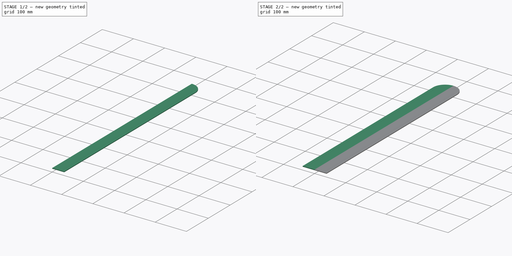
[diagram: build sequence overview — one tinted view per stage of 2, left to right]
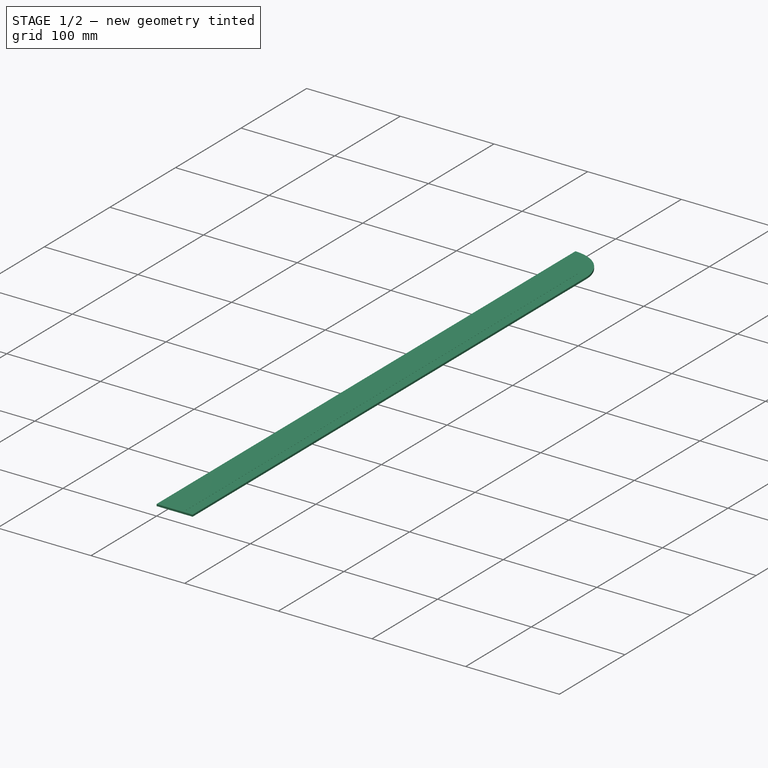
[diagram: stage 1 of 2 — iso view after this stage's code; geometry added in this stage tinted green]
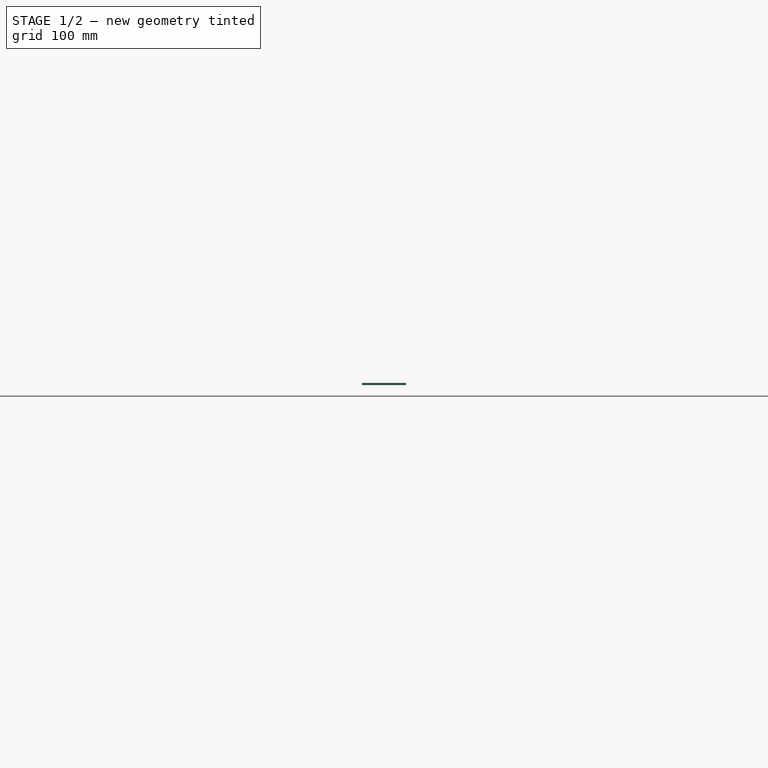
[diagram: stage 1 of 2 — front view after this stage's code; geometry added in this stage tinted green]
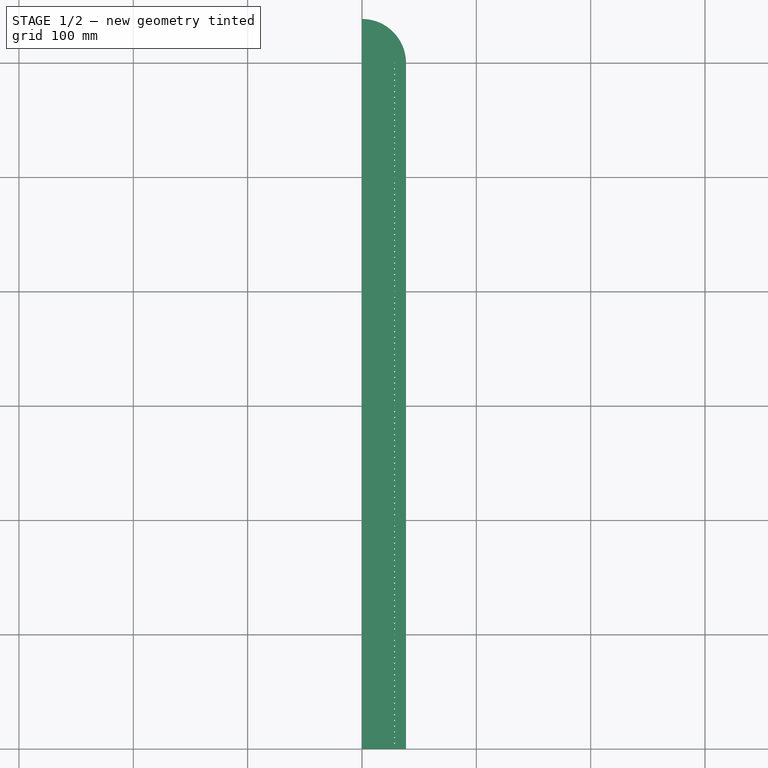
[diagram: stage 1 of 2 — top view after this stage's code; geometry added in this stage tinted green]
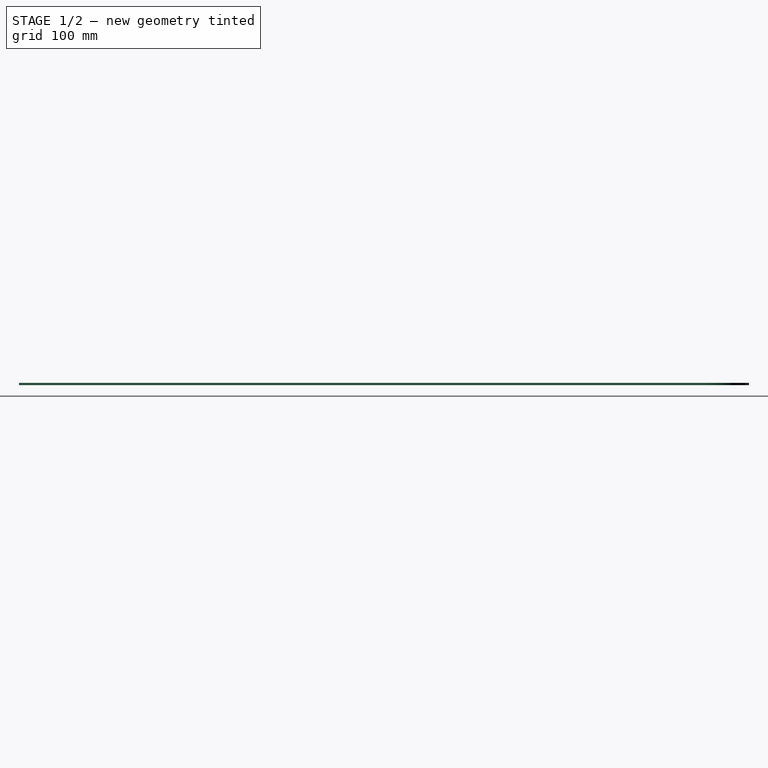
[diagram: stage 1 of 2 — right view after this stage's code; geometry added in this stage tinted green]
FCSTD DOCUMENT  (FreeCAD 0.18R16146 (Git))
Label: Pourtour
License: All rights reserved
LicenseURL: http://en.wikipedia.org/wiki/All_rights_reserved
objects: Sketcher::SketchObject×1, PartDesign::Pad×1, PartDesign::Mirrored×1, PartDesign::Body×1, Drawing::FeatureViewPart×1, Drawing::FeaturePage×1
note: 5 computed .brp shape members not serialized (recipe doc carries the construction recipe); baked Part::Feature solids carry a one-line shape summary decoded from their .brp

FEATURE [Sketcher::SketchObject] Sketch
  MapMode = 5
  Support = -> [XY_Plane]
  sketch-geometry (126):
    g0: LineSegment StartX=0 StartY=0 StartZ=0 EndX=38.5 EndY=0 EndZ=0
    g1: LineSegment StartX=38.5 StartY=0 StartZ=0 EndX=38.5 EndY=600 EndZ=0
    g2: LineSegment [constr] StartX=38.5 StartY=600 StartZ=0 EndX=0 EndY=600 EndZ=0
    g3: ArcOfCircle CenterX=0 CenterY=600 CenterZ=0 NormalX=0 NormalY=0 NormalZ=1 AngleXU=0 Radius=38.5 StartAngle=0 EndAngle=1.5708
    g4: LineSegment [constr] StartX=28.5 StartY=600 StartZ=0 EndX=28.5 EndY=0 EndZ=0
    g5: Circle CenterX=28.5 CenterY=5 CenterZ=0 NormalX=0 NormalY=0 NormalZ=1 AngleXU=0 Radius=0.5
    g6: Circle CenterX=28.5 CenterY=10 CenterZ=0 NormalX=0 NormalY=0 NormalZ=1 AngleXU=0 Radius=0.5
    g7: Circle CenterX=28.5 CenterY=15 CenterZ=0 NormalX=0 NormalY=0 NormalZ=1 AngleXU=0 Radius=0.5
    g8: Circle CenterX=28.5 CenterY=20 CenterZ=0 NormalX=0 NormalY=0 NormalZ=1 AngleXU=0 Radius=0.5
    g9: Circle CenterX=28.5 CenterY=25 CenterZ=0 NormalX=0 NormalY=0 NormalZ=1 AngleXU=0 Radius=0.5
    g10: Circle CenterX=28.5 CenterY=30 CenterZ=0 NormalX=0 NormalY=0 NormalZ=1 AngleXU=0 Radius=0.5
    g11: Circle CenterX=28.5 CenterY=35 CenterZ=0 NormalX=0 NormalY=0 NormalZ=1 AngleXU=0 Radius=0.5
    g12: Circle CenterX=28.5 CenterY=40 CenterZ=0 NormalX=0 NormalY=0 NormalZ=1 AngleXU=0 Radius=0.5
    g13: Circle CenterX=28.5 CenterY=45 CenterZ=0 NormalX=0 NormalY=0 NormalZ=1 AngleXU=0 Radius=0.5
    g14: Circle CenterX=28.5 CenterY=50 CenterZ=0 NormalX=0 NormalY=0 NormalZ=1 AngleXU=0 Radius=0.5
    g15: Circle CenterX=28.5 CenterY=55 CenterZ=0 NormalX=0 NormalY=0 NormalZ=1 AngleXU=0 Radius=0.5
    g16: Circle CenterX=28.5 CenterY=60 CenterZ=0 NormalX=0 NormalY=0 NormalZ=1 AngleXU=0 Radius=0.5
    g17: Circle CenterX=28.5 CenterY=65 CenterZ=0 NormalX=0 NormalY=0 NormalZ=1 AngleXU=0 Radius=0.5
    g18: Circle CenterX=28.5 CenterY=70 CenterZ=0 NormalX=0 NormalY=0 NormalZ=1 AngleXU=0 Radius=0.5
    g19: Circle CenterX=28.5 CenterY=75 CenterZ=0 NormalX=0 NormalY=0 NormalZ=1 AngleXU=0 Radius=0.5
    g20: Circle CenterX=28.5 CenterY=80 CenterZ=0 NormalX=0 NormalY=0 NormalZ=1 AngleXU=0 Radius=0.5
    g21: Circle CenterX=28.5 CenterY=85 CenterZ=0 NormalX=0 NormalY=0 NormalZ=1 AngleXU=0 Radius=0.5
    g22: Circle CenterX=28.5 CenterY=90 CenterZ=0 NormalX=0 NormalY=0 NormalZ=1 AngleXU=0 Radius=0.5
    g23: Circle CenterX=28.5 CenterY=95 CenterZ=0 NormalX=0 NormalY=0 NormalZ=1 AngleXU=0 Radius=0.5
    g24: Circle CenterX=28.5 CenterY=100 CenterZ=0 NormalX=0 NormalY=0 NormalZ=1 AngleXU=0 Radius=0.5
    g25: Circle CenterX=28.5 CenterY=105 CenterZ=0 NormalX=0 NormalY=0 NormalZ=1 AngleXU=0 Radius=0.5
    g26: Circle CenterX=28.5 CenterY=110 CenterZ=0 NormalX=0 NormalY=0 NormalZ=1 AngleXU=0 Radius=0.5
    g27: Circle CenterX=28.5 CenterY=115 CenterZ=0 NormalX=0 NormalY=0 NormalZ=1 AngleXU=0 Radius=0.5
    g28: Circle CenterX=28.5 CenterY=120 CenterZ=0 NormalX=0 NormalY=0 NormalZ=1 AngleXU=0 Radius=0.5
    g29: Circle CenterX=28.5 CenterY=125 CenterZ=0 NormalX=0 NormalY=0 NormalZ=1 AngleXU=0 Radius=0.5
    g30: Circle CenterX=28.5 CenterY=130 CenterZ=0 NormalX=0 NormalY=0 NormalZ=1 AngleXU=0 Radius=0.5
    g31: Circle CenterX=28.5 CenterY=135 CenterZ=0 NormalX=0 NormalY=0 NormalZ=1 AngleXU=0 Radius=0.5
    g32: Circle CenterX=28.5 CenterY=140 CenterZ=0 NormalX=0 NormalY=0 NormalZ=1 AngleXU=0 Radius=0.5
    g33: Circle CenterX=28.5 CenterY=145 CenterZ=0 NormalX=0 NormalY=0 NormalZ=1 AngleXU=0 Radius=0.5
    g34: Circle CenterX=28.5 CenterY=150 CenterZ=0 NormalX=0 NormalY=0 NormalZ=1 AngleXU=0 Radius=0.5
    g35: Circle CenterX=28.5 CenterY=155 CenterZ=0 NormalX=0 NormalY=0 NormalZ=1 AngleXU=0 Radius=0.5
    g36: Circle CenterX=28.5 CenterY=160 CenterZ=0 NormalX=0 NormalY=0 NormalZ=1 AngleXU=0 Radius=0.5
    g37: Circle CenterX=28.5 CenterY=165 CenterZ=0 NormalX=0 NormalY=0 NormalZ=1 AngleXU=0 Radius=0.5
    g38: Circle CenterX=28.5 CenterY=170 CenterZ=0 NormalX=0 NormalY=0 NormalZ=1 AngleXU=0 Radius=0.5
    g39: Circle CenterX=28.5 CenterY=175 CenterZ=0 NormalX=0 NormalY=0 NormalZ=1 AngleXU=0 Radius=0.5
    g40: Circle CenterX=28.5 CenterY=180 CenterZ=0 NormalX=0 NormalY=0 NormalZ=1 AngleXU=0 Radius=0.5
    g41: Circle CenterX=28.5 CenterY=185 CenterZ=0 NormalX=0 NormalY=0 NormalZ=1 AngleXU=0 Radius=0.5
    g42: Circle CenterX=28.5 CenterY=190 CenterZ=0 NormalX=0 NormalY=0 NormalZ=1 AngleXU=0 Radius=0.5
    g43: Circle CenterX=28.5 CenterY=195 CenterZ=0 NormalX=0 NormalY=0 NormalZ=1 AngleXU=0 Radius=0.5
    g44: Circle CenterX=28.5 CenterY=200 CenterZ=0 NormalX=0 NormalY=0 NormalZ=1 AngleXU=0 Radius=0.5
    g45: Circle CenterX=28.5 CenterY=205 CenterZ=0 NormalX=0 NormalY=0 NormalZ=1 AngleXU=0 Radius=0.5
    g46: Circle CenterX=28.5 CenterY=210 CenterZ=0 NormalX=0 NormalY=0 NormalZ=1 AngleXU=0 Radius=0.5
    g47: Circle CenterX=28.5 CenterY=215 CenterZ=0 NormalX=0 NormalY=0 NormalZ=1 AngleXU=0 Radius=0.5
    g48: Circle CenterX=28.5 CenterY=220 CenterZ=0 NormalX=0 NormalY=0 NormalZ=1 AngleXU=0 Radius=0.5
    g49: Circle CenterX=28.5 CenterY=225 CenterZ=0 NormalX=0 NormalY=0 NormalZ=1 AngleXU=0 Radius=0.5
    g50: Circle CenterX=28.5 CenterY=230 CenterZ=0 NormalX=0 NormalY=0 NormalZ=1 AngleXU=0 Radius=0.5
    g51: Circle CenterX=28.5 CenterY=235 CenterZ=0 NormalX=0 NormalY=0 NormalZ=1 AngleXU=0 Radius=0.5
    g52: Circle CenterX=28.5 CenterY=240 CenterZ=0 NormalX=0 NormalY=0 NormalZ=1 AngleXU=0 Radius=0.5
    g53: Circle CenterX=28.5 CenterY=245 CenterZ=0 NormalX=0 NormalY=0 NormalZ=1 AngleXU=0 Radius=0.5
    g54: Circle CenterX=28.5 CenterY=250 CenterZ=0 NormalX=0 NormalY=0 NormalZ=1 AngleXU=0 Radius=0.5
    g55: Circle CenterX=28.5 CenterY=255 CenterZ=0 NormalX=0 NormalY=0 NormalZ=1 AngleXU=0 Radius=0.5
    g56: Circle CenterX=28.5 CenterY=260 CenterZ=0 NormalX=0 NormalY=0 NormalZ=1 AngleXU=0 Radius=0.5
    g57: Circle CenterX=28.5 CenterY=265 CenterZ=0 NormalX=0 NormalY=0 NormalZ=1 AngleXU=0 Radius=0.5
    g58: Circle CenterX=28.5 CenterY=270 CenterZ=0 NormalX=0 NormalY=0 NormalZ=1 AngleXU=0 Radius=0.5
    g59: Circle CenterX=28.5 CenterY=275 CenterZ=0 NormalX=0 NormalY=0 NormalZ=1 AngleXU=0 Radius=0.5
    g60: Circle CenterX=28.5 CenterY=280 CenterZ=0 NormalX=0 NormalY=0 NormalZ=1 AngleXU=0 Radius=0.5
    g61: Circle CenterX=28.5 CenterY=285 CenterZ=0 NormalX=0 NormalY=0 NormalZ=1 AngleXU=0 Radius=0.5
    g62: Circle CenterX=28.5 CenterY=290 CenterZ=0 NormalX=0 NormalY=0 NormalZ=1 AngleXU=0 Radius=0.5
    g63: Circle CenterX=28.5 CenterY=295 CenterZ=0 NormalX=0 NormalY=0 NormalZ=1 AngleXU=0 Radius=0.5
    g64: Circle CenterX=28.5 CenterY=300 CenterZ=0 NormalX=0 NormalY=0 NormalZ=1 AngleXU=0 Radius=0.5
    g65: Circle CenterX=28.5 CenterY=305 CenterZ=0 NormalX=0 NormalY=0 NormalZ=1 AngleXU=0 Radius=0.5
    g66: Circle CenterX=28.5 CenterY=310 CenterZ=0 NormalX=0 NormalY=0 NormalZ=1 AngleXU=0 Radius=0.5
    g67: Circle CenterX=28.5 CenterY=315 CenterZ=0 NormalX=0 NormalY=0 NormalZ=1 AngleXU=0 Radius=0.5
    g68: Circle CenterX=28.5 CenterY=320 CenterZ=0 NormalX=0 NormalY=0 NormalZ=1 AngleXU=0 Radius=0.5
    g69: Circle CenterX=28.5 CenterY=325 CenterZ=0 NormalX=0 NormalY=0 NormalZ=1 AngleXU=0 Radius=0.5
    g70: Circle CenterX=28.5 CenterY=330 CenterZ=0 NormalX=0 NormalY=0 NormalZ=1 AngleXU=0 Radius=0.5
    g71: Circle CenterX=28.5 CenterY=335 CenterZ=0 NormalX=0 NormalY=0 NormalZ=1 AngleXU=0 Radius=0.5
    g72: Circle CenterX=28.5 CenterY=340 CenterZ=0 NormalX=0 NormalY=0 NormalZ=1 AngleXU=0 Radius=0.5
    g73: Circle CenterX=28.5 CenterY=345 CenterZ=0 NormalX=0 NormalY=0 NormalZ=1 AngleXU=0 Radius=0.5
    g74: Circle CenterX=28.5 CenterY=350 CenterZ=0 NormalX=0 NormalY=0 NormalZ=1 AngleXU=0 Radius=0.5
    g75: Circle CenterX=28.5 CenterY=355 CenterZ=0 NormalX=0 NormalY=0 NormalZ=1 AngleXU=0 Radius=0.5
    g76: Circle CenterX=28.5 CenterY=360 CenterZ=0 NormalX=0 NormalY=0 NormalZ=1 AngleXU=0 Radius=0.5
    g77: Circle CenterX=28.5 CenterY=365 CenterZ=0 NormalX=0 NormalY=0 NormalZ=1 AngleXU=0 Radius=0.5
    g78: Circle CenterX=28.5 CenterY=370 CenterZ=0 NormalX=0 NormalY=0 NormalZ=1 AngleXU=0 Radius=0.5
    g79: Circle CenterX=28.5 CenterY=375 CenterZ=0 NormalX=0 NormalY=0 NormalZ=1 AngleXU=0 Radius=0.5
    g80: Circle CenterX=28.5 CenterY=380 CenterZ=0 NormalX=0 NormalY=0 NormalZ=1 AngleXU=0 Radius=0.5
    g81: Circle CenterX=28.5 CenterY=385 CenterZ=0 NormalX=0 NormalY=0 NormalZ=1 AngleXU=0 Radius=0.5
    g82: Circle CenterX=28.5 CenterY=390 CenterZ=0 NormalX=0 NormalY=0 NormalZ=1 AngleXU=0 Radius=0.5
    g83: Circle CenterX=28.5 CenterY=395 CenterZ=0 NormalX=0 NormalY=0 NormalZ=1 AngleXU=0 Radius=0.5
    g84: Circle CenterX=28.5 CenterY=400 CenterZ=0 NormalX=0 NormalY=0 NormalZ=1 AngleXU=0 Radius=0.5
    g85: Circle CenterX=28.5 CenterY=405 CenterZ=0 NormalX=0 NormalY=0 NormalZ=1 AngleXU=0 Radius=0.5
    g86: Circle CenterX=28.5 CenterY=410 CenterZ=0 NormalX=0 NormalY=0 NormalZ=1 AngleXU=0 Radius=0.5
    g87: Circle CenterX=28.5 CenterY=415 CenterZ=0 NormalX=0 NormalY=0 NormalZ=1 AngleXU=0 Radius=0.5
    g88: Circle CenterX=28.5 CenterY=420 CenterZ=0 NormalX=0 NormalY=0 NormalZ=1 AngleXU=0 Radius=0.5
    g89: Circle CenterX=28.5 CenterY=425 CenterZ=0 NormalX=0 NormalY=0 NormalZ=1 AngleXU=0 Radius=0.5
    g90: Circle CenterX=28.5 CenterY=430 CenterZ=0 NormalX=0 NormalY=0 NormalZ=1 AngleXU=0 Radius=0.5
    g91: Circle CenterX=28.5 CenterY=435 CenterZ=0 NormalX=0 NormalY=0 NormalZ=1 AngleXU=0 Radius=0.5
    g92: Circle CenterX=28.5 CenterY=440 CenterZ=0 NormalX=0 NormalY=0 NormalZ=1 AngleXU=0 Radius=0.5
    g93: Circle CenterX=28.5 CenterY=445 CenterZ=0 NormalX=0 NormalY=0 NormalZ=1 AngleXU=0 Radius=0.5
    g94: Circle CenterX=28.5 CenterY=450 CenterZ=0 NormalX=0 NormalY=0 NormalZ=1 AngleXU=0 Radius=0.5
    g95: Circle CenterX=28.5 CenterY=455 CenterZ=0 NormalX=0 NormalY=0 NormalZ=1 AngleXU=0 Radius=0.5
    g96: Circle CenterX=28.5 CenterY=460 CenterZ=0 NormalX=0 NormalY=0 NormalZ=1 AngleXU=0 Radius=0.5
    g97: Circle CenterX=28.5 CenterY=465 CenterZ=0 NormalX=0 NormalY=0 NormalZ=1 AngleXU=0 Radius=0.5
    g98: Circle CenterX=28.5 CenterY=470 CenterZ=0 NormalX=0 NormalY=0 NormalZ=1 AngleXU=0 Radius=0.5
    g99: Circle CenterX=28.5 CenterY=475 CenterZ=0 NormalX=0 NormalY=0 NormalZ=1 AngleXU=0 Radius=0.5
    g100: Circle CenterX=28.5 CenterY=480 CenterZ=0 NormalX=0 NormalY=0 NormalZ=1 AngleXU=0 Radius=0.5
    g101: Circle CenterX=28.5 CenterY=485 CenterZ=0 NormalX=0 NormalY=0 NormalZ=1 AngleXU=0 Radius=0.5
    g102: Circle CenterX=28.5 CenterY=490 CenterZ=0 NormalX=0 NormalY=0 NormalZ=1 AngleXU=0 Radius=0.5
    g103: Circle CenterX=28.5 CenterY=495 CenterZ=0 NormalX=0 NormalY=0 NormalZ=1 AngleXU=0 Radius=0.5
    g104: Circle CenterX=28.5 CenterY=500 CenterZ=0 NormalX=0 NormalY=0 NormalZ=1 AngleXU=0 Radius=0.5
    g105: Circle CenterX=28.5 CenterY=505 CenterZ=0 NormalX=0 NormalY=0 NormalZ=1 AngleXU=0 Radius=0.5
    g106: Circle CenterX=28.5 CenterY=510 CenterZ=0 NormalX=0 NormalY=0 NormalZ=1 AngleXU=0 Radius=0.5
    g107: Circle CenterX=28.5 CenterY=515 CenterZ=0 NormalX=0 NormalY=0 NormalZ=1 AngleXU=0 Radius=0.5
    g108: Circle CenterX=28.5 CenterY=520 CenterZ=0 NormalX=0 NormalY=0 NormalZ=1 AngleXU=0 Radius=0.5
    g109: Circle CenterX=28.5 CenterY=525 CenterZ=0 NormalX=0 NormalY=0 NormalZ=1 AngleXU=0 Radius=0.5
    g110: Circle CenterX=28.5 CenterY=530 CenterZ=0 NormalX=0 NormalY=0 NormalZ=1 AngleXU=0 Radius=0.5
    g111: Circle CenterX=28.5 CenterY=535 CenterZ=0 NormalX=0 NormalY=0 NormalZ=1 AngleXU=0 Radius=0.5
    g112: Circle CenterX=28.5 CenterY=540 CenterZ=0 NormalX=0 NormalY=0 NormalZ=1 AngleXU=0 Radius=0.5
    g113: Circle CenterX=28.5 CenterY=545 CenterZ=0 NormalX=0 NormalY=0 NormalZ=1 AngleXU=0 Radius=0.5
    g114: Circle CenterX=28.5 CenterY=550 CenterZ=0 NormalX=0 NormalY=0 NormalZ=1 AngleXU=0 Radius=0.5
    g115: Circle CenterX=28.5 CenterY=555 CenterZ=0 NormalX=0 NormalY=0 NormalZ=1 AngleXU=0 Radius=0.5
    g116: Circle CenterX=28.5 CenterY=560 CenterZ=0 NormalX=0 NormalY=0 NormalZ=1 AngleXU=0 Radius=0.5
    g117: Circle CenterX=28.5 CenterY=565 CenterZ=0 NormalX=0 NormalY=0 NormalZ=1 AngleXU=0 Radius=0.5
    g118: Circle CenterX=28.5 CenterY=570 CenterZ=0 NormalX=0 NormalY=0 NormalZ=1 AngleXU=0 Radius=0.5
    g119: Circle CenterX=28.5 CenterY=575 CenterZ=0 NormalX=0 NormalY=0 NormalZ=1 AngleXU=0 Radius=0.5
    g120: Circle CenterX=28.5 CenterY=580 CenterZ=0 NormalX=0 NormalY=0 NormalZ=1 AngleXU=0 Radius=0.5
    g121: Circle CenterX=28.5 CenterY=585 CenterZ=0 NormalX=0 NormalY=0 NormalZ=1 AngleXU=0 Radius=0.5
    g122: Circle CenterX=28.5 CenterY=590 CenterZ=0 NormalX=0 NormalY=0 NormalZ=1 AngleXU=0 Radius=0.5
    g123: Circle CenterX=28.5 CenterY=595 CenterZ=0 NormalX=0 NormalY=0 NormalZ=1 AngleXU=0 Radius=0.5
    g124: Circle CenterX=28.5 CenterY=600 CenterZ=0 NormalX=0 NormalY=0 NormalZ=1 AngleXU=0 Radius=0.5
    g125: LineSegment StartX=2.4e-15 StartY=638.5 StartZ=0 EndX=0 EndY=0 EndZ=0
  constraints (378):
    c: Horizontal(g0)
    c: Coincident(g0,g-1)
    c: DistanceX(g0,g0) = 38.5
    c: Vertical(g1)
    c: Coincident(g1,g0)
    c: DistanceY(g1,g1) = 600
    c: Coincident(g2,g1)
    c: PointOnObject(g2,g-2)
    c: Horizontal(g2)
    c: Coincident(g3,g2)
    c: Coincident(g3,g1)
    c: PointOnObject(g3,g-2)
    c: Vertical(g4)
    c: PointOnObject(g4,g2)
    c: Distance(g4,g1) = 10
    c: PointOnObject(g4,g0)
    c: PointOnObject(g5,g4)
    c: Radius(g5) = 0.5
    c: Distance(g5,g0) = 5
    c: PointOnObject(g6,g4)
    c: Radius(g6) = 0.5
    c: Distance(g6,g5) = 5
    c: Equal(g5,g7) = 0.5
    c: Equal(g6,g8) = 0.5
    c: Distance(g8,g7) = 5
    c: PointOnObject(g8,g4)
    c: PointOnObject(g7,g4)
    c: Distance(g6,g7) = 5
    c: Equal(g5,g9) = 0.5
    c: Equal(g6,g10) = 0.5
    c: Distance(g10,g9) = 5
    c: Equal(g9,g11) = 0.5
    c: Equal(g10,g12) = 0.5
    c: Distance(g12,g11) = 5
    c: Distance(g10,g11) = 5
    c: PointOnObject(g12,g4)
    c: PointOnObject(g11,g4)
    c: PointOnObject(g10,g4)
    c: PointOnObject(g9,g4)
    c: Distance(g9,g8) = 5
    c: Equal(g5,g13) = 0.5
    c: Equal(g6,g14) = 0.5
    c: Distance(g14,g13) = 5
    c: Equal(g13,g15) = 0.5
    c: Equal(g14,g16) = 0.5
    c: Distance(g16,g15) = 5
    c: Distance(g14,g15) = 5
    c: Equal(g13,g17) = 0.5
    c: Equal(g14,g18) = 0.5
    c: Distance(g18,g17) = 5
    c: Equal(g17,g19) = 0.5
    c: Equal(g18,g20) = 0.5
    c: Distance(g20,g19) = 5
    c: Distance(g18,g19) = 5
    c: Distance(g17,g16) = 5
    c: PointOnObject(g20,g4)
    c: PointOnObject(g13,g4)
    c: PointOnObject(g14,g4)
    c: PointOnObject(g15,g4)
    c: PointOnObject(g16,g4)
    c: PointOnObject(g17,g4)
    c: PointOnObject(g18,g4)
    c: PointOnObject(g19,g4)
    c: Distance(g13,g12) = 5
    c: Equal(g5,g21) = 0.5
    c: Equal(g6,g22) = 0.5
    c: Distance(g22,g21) = 5
    c: Equal(g21,g23) = 0.5
    c: Equal(g22,g24) = 0.5
    c: Distance(g24,g23) = 5
    c: Distance(g22,g23) = 5
    c: Equal(g21,g25) = 0.5
    c: Equal(g22,g26) = 0.5
    c: Distance(g26,g25) = 5
    c: Equal(g25,g27) = 0.5
    c: Equal(g26,g28) = 0.5
    c: Distance(g28,g27) = 5
    c: Distance(g26,g27) = 5
    c: Distance(g25,g24) = 5
    c: Equal(g21,g29) = 0.5
    c: Equal(g22,g30) = 0.5
    c: Distance(g30,g29) = 5
    c: Equal(g29,g31) = 0.5
    c: Equal(g30,g32) = 0.5
    c: Distance(g32,g31) = 5
    c: Distance(g30,g31) = 5
    c: Equal(g29,g33) = 0.5
    c: Equal(g30,g34) = 0.5
    c: Distance(g34,g33) = 5
    c: Equal(g33,g35) = 0.5
    c: Equal(g34,g36) = 0.5
    c: Distance(g36,g35) = 5
    c: Distance(g34,g35) = 5
    c: Distance(g33,g32) = 5
    c: Distance(g29,g28) = 5
    c: PointOnObject(g36,g4)
    c: PointOnObject(g21,g4)
    c: PointOnObject(g22,g4)
    c: PointOnObject(g23,g4)
    c: PointOnObject(g24,g4)
    c: PointOnObject(g25,g4)
    c: PointOnObject(g26,g4)
    c: PointOnObject(g27,g4)
    c: PointOnObject(g28,g4)
    c: PointOnObject(g29,g4)
    c: PointOnObject(g30,g4)
    c: PointOnObject(g31,g4)
    c: PointOnObject(g32,g4)
    c: PointOnObject(g33,g4)
    c: PointOnObject(g34,g4)
    c: PointOnObject(g35,g4)
    c: Distance(g21,g20) = 5
    c: Equal(g5,g37) = 0.5
    c: Equal(g6,g38) = 0.5
    c: Distance(g38,g37) = 5
    c: Equal(g37,g39) = 0.5
    c: Equal(g38,g40) = 0.5
    c: Distance(g40,g39) = 5
    c: Distance(g38,g39) = 5
    c: Equal(g37,g41) = 0.5
    c: Equal(g38,g42) = 0.5
    c: Distance(g42,g41) = 5
    c: Equal(g41,g43) = 0.5
    c: Equal(g42,g44) = 0.5
    c: Distance(g44,g43) = 5
    c: Distance(g42,g43) = 5
    c: Distance(g41,g40) = 5
    c: Equal(g37,g45) = 0.5
    c: Equal(g38,g46) = 0.5
    c: Distance(g46,g45) = 5
    c: Equal(g45,g47) = 0.5
    c: Equal(g46,g48) = 0.5
    c: Distance(g48,g47) = 5
    c: Distance(g46,g47) = 5
    c: Equal(g45,g49) = 0.5
    c: Equal(g46,g50) = 0.5
    c: Distance(g50,g49) = 5
    c: Equal(g49,g51) = 0.5
    c: Equal(g50,g52) = 0.5
    c: Distance(g52,g51) = 5
    c: Distance(g50,g51) = 5
    c: Distance(g49,g48) = 5
    c: Distance(g45,g44) = 5
    c: Equal(g37,g53) = 0.5
    c: Equal(g38,g54) = 0.5
    c: Distance(g54,g53) = 5
    c: Equal(g53,g55) = 0.5
    c: Equal(g54,g56) = 0.5
    c: Distance(g56,g55) = 5
    c: Distance(g54,g55) = 5
    c: Equal(g53,g57) = 0.5
    c: Equal(g54,g58) = 0.5
    c: Distance(g58,g57) = 5
    c: Equal(g57,g59) = 0.5
    c: Equal(g58,g60) = 0.5
    c: Distance(g60,g59) = 5
    c: Distance(g58,g59) = 5
    c: Distance(g57,g56) = 5
    c: Equal(g53,g61) = 0.5
    c: Equal(g54,g62) = 0.5
    c: Distance(g62,g61) = 5
    c: Equal(g61,g63) = 0.5
    c: Equal(g62,g64) = 0.5
    c: Distance(g64,g63) = 5
    c: Distance(g62,g63) = 5
    c: Equal(g61,g65) = 0.5
    c: Equal(g62,g66) = 0.5
    c: Distance(g66,g65) = 5
    c: Equal(g65,g67) = 0.5
    c: Equal(g66,g68) = 0.5
    c: Distance(g68,g67) = 5
    c: Distance(g66,g67) = 5
    c: Distance(g65,g64) = 5
    c: Distance(g61,g60) = 5
    c: Distance(g53,g52) = 5
    c: PointOnObject(g68,g4)
    c: PointOnObject(g37,g4)
    c: PointOnObject(g38,g4)
    c: PointOnObject(g67,g4)
    c: PointOnObject(g66,g4)
    c: PointOnObject(g65,g4)
    c: PointOnObject(g64,g4)
    c: PointOnObject(g63,g4)
    c: PointOnObject(g62,g4)
    c: PointOnObject(g61,g4)
    c: PointOnObject(g60,g4)
    c: PointOnObject(g59,g4)
    c: PointOnObject(g58,g4)
    c: PointOnObject(g57,g4)
    c: PointOnObject(g56,g4)
    c: PointOnObject(g55,g4)
    c: PointOnObject(g54,g4)
    c: PointOnObject(g53,g4)
    c: PointOnObject(g52,g4)
    c: PointOnObject(g51,g4)
    c: PointOnObject(g50,g4)
    c: PointOnObject(g49,g4)
    c: PointOnObject(g48,g4)
    c: PointOnObject(g47,g4)
    c: PointOnObject(g46,g4)
    c: PointOnObject(g45,g4)
    c: PointOnObject(g44,g4)
    c: PointOnObject(g43,g4)
    c: PointOnObject(g42,g4)
    c: PointOnObject(g41,g4)
    c: PointOnObject(g40,g4)
    c: PointOnObject(g39,g4)
    c: Distance(g37,g36) = 5
    c: Equal(g5,g69) = 0.5
    c: Equal(g6,g70) = 0.5
    c: Distance(g70,g69) = 5
    c: Equal(g69,g71) = 0.5
    c: Equal(g70,g72) = 0.5
    c: Distance(g72,g71) = 5
    c: Distance(g70,g71) = 5
    c: Equal(g69,g73) = 0.5
    c: Equal(g70,g74) = 0.5
    c: Distance(g74,g73) = 5
    c: Equal(g73,g75) = 0.5
    c: Equal(g74,g76) = 0.5
    c: Distance(g76,g75) = 5
    c: Distance(g74,g75) = 5
    c: Distance(g73,g72) = 5
    c: Equal(g69,g77) = 0.5
    c: Equal(g70,g78) = 0.5
    c: Distance(g78,g77) = 5
    c: Equal(g77,g79) = 0.5
    c: Equal(g78,g80) = 0.5
    c: Distance(g80,g79) = 5
    c: Distance(g78,g79) = 5
    c: Equal(g77,g81) = 0.5
    c: Equal(g78,g82) = 0.5
    c: Distance(g82,g81) = 5
    c: Equal(g81,g83) = 0.5
    c: Equal(g82,g84) = 0.5
    c: Distance(g84,g83) = 5
    c: Distance(g82,g83) = 5
    c: Distance(g81,g80) = 5
    c: Distance(g77,g76) = 5
    c: Equal(g69,g85) = 0.5
    c: Equal(g70,g86) = 0.5
    c: Distance(g86,g85) = 5
    c: Equal(g85,g87) = 0.5
    c: Equal(g86,g88) = 0.5
    c: Distance(g88,g87) = 5
    c: Distance(g86,g87) = 5
    c: Equal(g85,g89) = 0.5
    c: Equal(g86,g90) = 0.5
    c: Distance(g90,g89) = 5
    c: Equal(g89,g91) = 0.5
    c: Equal(g90,g92) = 0.5
    c: Distance(g92,g91) = 5
    c: Distance(g90,g91) = 5
    c: Distance(g89,g88) = 5
    c: Equal(g85,g93) = 0.5
    c: Equal(g86,g94) = 0.5
    c: Distance(g94,g93) = 5
    c: Equal(g93,g95) = 0.5
    c: Equal(g94,g96) = 0.5
    c: Distance(g96,g95) = 5
    c: Distance(g94,g95) = 5
    c: Equal(g93,g97) = 0.5
    c: Equal(g94,g98) = 0.5
    c: Distance(g98,g97) = 5
    c: Equal(g97,g99) = 0.5
    c: Equal(g98,g100) = 0.5
    c: Distance(g100,g99) = 5
    c: Distance(g98,g99) = 5
    c: Distance(g97,g96) = 5
    c: Distance(g93,g92) = 5
    c: Distance(g85,g84) = 5
    c: Equal(g69,g101) = 0.5
    c: Equal(g70,g102) = 0.5
    c: Distance(g102,g101) = 5
    c: Equal(g101,g103) = 0.5
    c: Equal(g102,g104) = 0.5
    c: Distance(g104,g103) = 5
    c: Distance(g102,g103) = 5
    c: Equal(g101,g105) = 0.5
    c: Equal(g102,g106) = 0.5
    c: Distance(g106,g105) = 5
    c: Equal(g105,g107) = 0.5
    c: Equal(g106,g108) = 0.5
    c: Distance(g108,g107) = 5
    c: Distance(g106,g107) = 5
    c: Distance(g105,g104) = 5
    c: Equal(g101,g109) = 0.5
    c: Equal(g102,g110) = 0.5
    c: Distance(g110,g109) = 5
    c: Equal(g109,g111) = 0.5
    c: Equal(g110,g112) = 0.5
    c: Distance(g112,g111) = 5
    c: Distance(g110,g111) = 5
    c: Equal(g109,g113) = 0.5
    c: Equal(g110,g114) = 0.5
    c: Distance(g114,g113) = 5
    c: Equal(g113,g115) = 0.5
    c: Equal(g114,g116) = 0.5
    c: Distance(g116,g115) = 5
    c: Distance(g114,g115) = 5
    c: Distance(g113,g112) = 5
    c: Distance(g109,g108) = 5
    c: Equal(g101,g117) = 0.5
    c: Distance(g117,g116) = 5
    c: Distance(g101,g100) = 5
    c: PointOnObject(g117,g4)
    c: PointOnObject(g116,g4)
    c: PointOnObject(g115,g4)
    c: PointOnObject(g114,g4)
    c: PointOnObject(g113,g4)
    c: PointOnObject(g112,g4)
    c: PointOnObject(g111,g4)
    c: PointOnObject(g110,g4)
    c: PointOnObject(g109,g4)
    c: PointOnObject(g108,g4)
    c: PointOnObject(g107,g4)
    c: PointOnObject(g106,g4)
    c: PointOnObject(g105,g4)
    c: PointOnObject(g104,g4)
    c: PointOnObject(g103,g4)
    c: PointOnObject(g102,g4)
    c: PointOnObject(g101,g4)
    c: PointOnObject(g100,g4)
    c: PointOnObject(g99,g4)
    c: PointOnObject(g98,g4)
    c: PointOnObject(g97,g4)
    c: PointOnObject(g96,g4)
    c: PointOnObject(g95,g4)
    c: PointOnObject(g94,g4)
    c: PointOnObject(g93,g4)
    c: PointOnObject(g92,g4)
    c: PointOnObject(g91,g4)
    c: PointOnObject(g90,g4)
    c: PointOnObject(g89,g4)
    c: PointOnObject(g88,g4)
    c: PointOnObject(g87,g4)
    c: PointOnObject(g86,g4)
    c: PointOnObject(g85,g4)
    c: PointOnObject(g84,g4)
    c: PointOnObject(g83,g4)
    c: PointOnObject(g82,g4)
    c: PointOnObject(g81,g4)
    c: PointOnObject(g80,g4)
    c: PointOnObject(g79,g4)
    c: PointOnObject(g78,g4)
    c: PointOnObject(g77,g4)
    c: PointOnObject(g76,g4)
    c: PointOnObject(g75,g4)
    c: PointOnObject(g74,g4)
    c: PointOnObject(g73,g4)
    c: PointOnObject(g72,g4)
    c: PointOnObject(g71,g4)
    c: PointOnObject(g70,g4)
    c: PointOnObject(g69,g4)
    c: Distance(g69,g68) = 5
    c: Distance(g119,g118) = 5
    c: Distance(g121,g120) = 5
    c: Distance(g123,g122) = 5
    c: Distance(g121,g122) = 5
    c: Distance(g120,g119) = 5
    c: Distance(g124,g123) = 5
    c: PointOnObject(g124,g4)
    c: PointOnObject(g123,g4)
    c: PointOnObject(g122,g4)
    c: PointOnObject(g121,g4)
    c: PointOnObject(g120,g4)
    c: PointOnObject(g119,g4)
    c: PointOnObject(g118,g4)
    c: Equal(g117,g118)
    c: Equal(g118,g119)
    c: Distance(g117,g118) = 5
    c: Equal(g120,g119)
    c: Equal(g120,g121)
    c: Equal(g121,g122)
    c: Equal(g122,g123)
    c: Equal(g123,g124)
    c: Coincident(g125,g3)
    c: Coincident(g125,g0)
FEATURE [PartDesign::Pad] Pad
  Length = 2
  Length2 = 100
  Profile = -> Sketch
  Type = 0
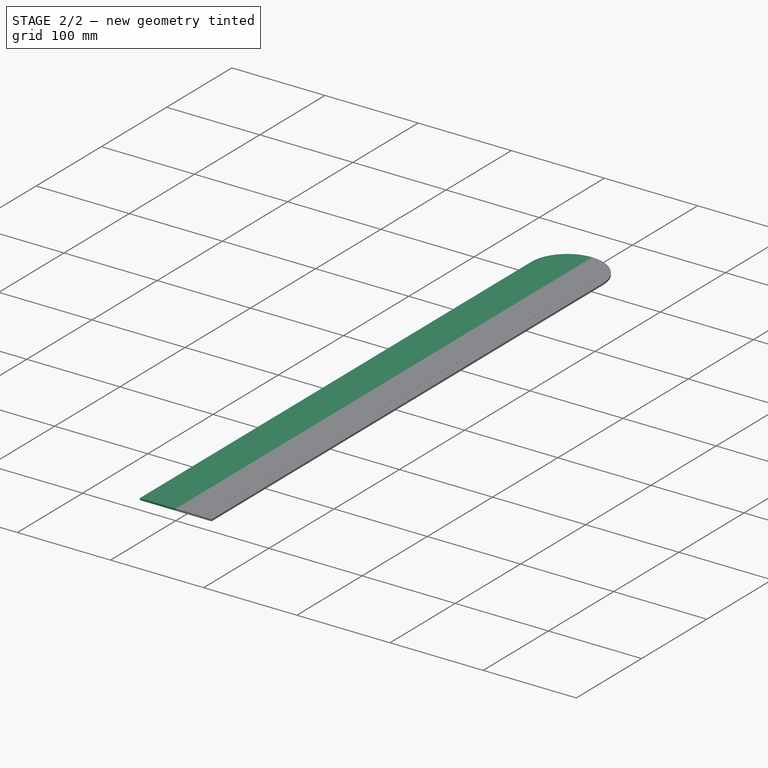
[diagram: stage 2 of 2 — iso view after this stage's code; geometry added in this stage tinted green]
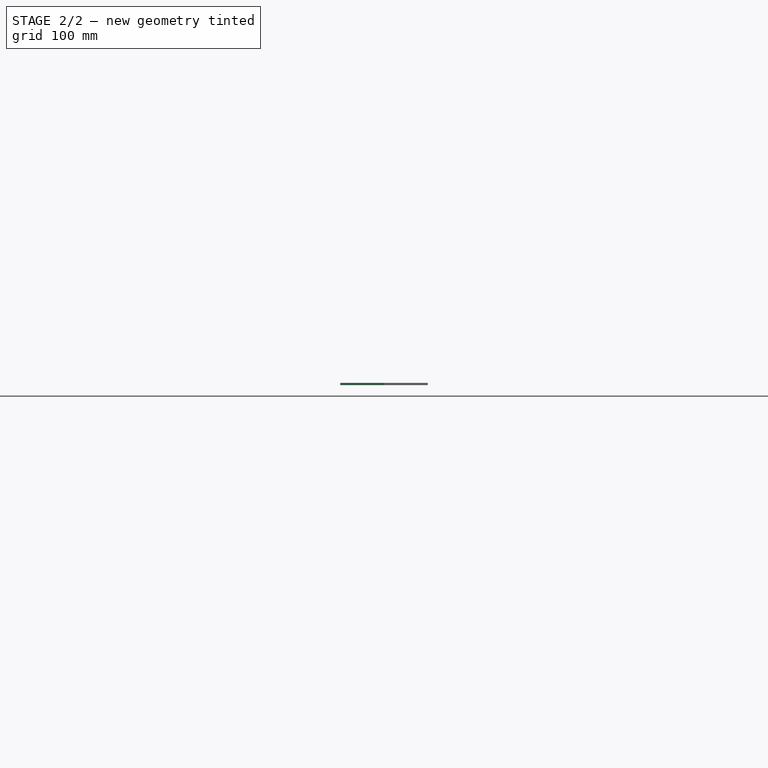
[diagram: stage 2 of 2 — front view after this stage's code; geometry added in this stage tinted green]
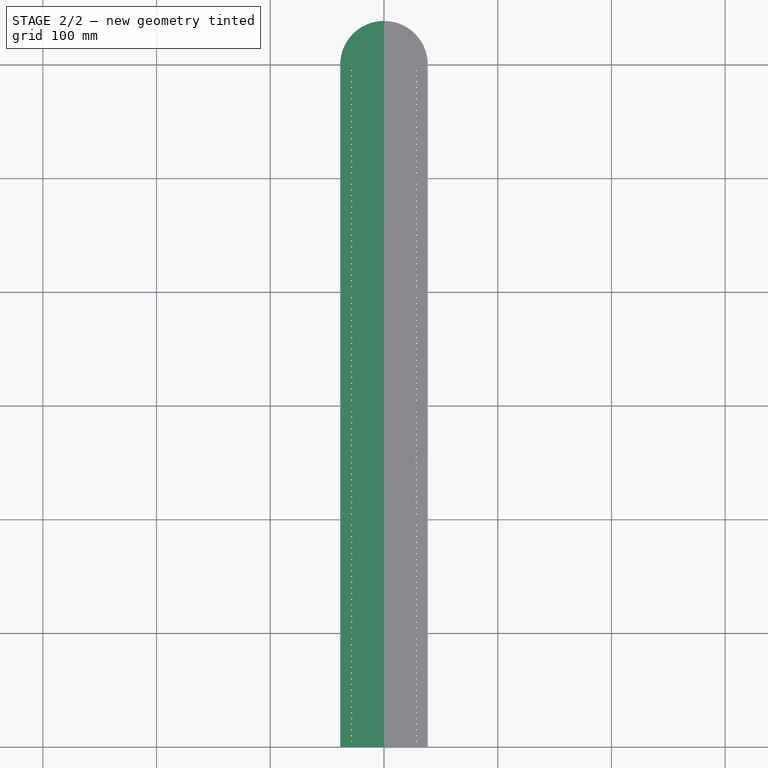
[diagram: stage 2 of 2 — top view after this stage's code; geometry added in this stage tinted green]
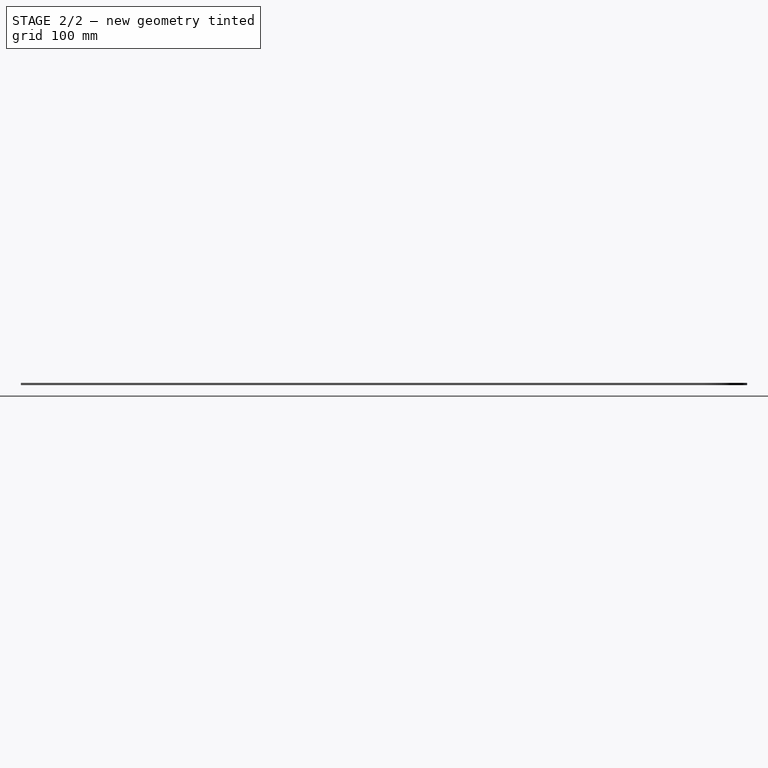
[diagram: stage 2 of 2 — right view after this stage's code; geometry added in this stage tinted green]
FEATURE [PartDesign::Mirrored] Mirrored
  BaseFeature = -> Pad
  MirrorPlane = -> Sketch [V_Axis]
  Originals = -> [Pad]
FEATURE [PartDesign::Body] Body
  Group = -> [Sketch,Pad,Mirrored]
  Origin = -> Origin
  Tip = -> Mirrored
FEATURE [Drawing::FeatureViewPart] Ortho  label="Ortho_0_0"
  Direction = (0,0,1)
  HiddenWidth = 0.15
  LineWidth = 0.35
  Rotation = 90
  Scale = 0.375
  ShowHiddenLines = false
  ShowSmoothLines = false
  Source = -> Mirrored
  Tolerance = 0.05
  ViewResult = <blob: 10274 chars omitted>
  Visible = false
  X = 28.7812
  Y = 86
FEATURE [Drawing::FeaturePage] Page
  EditableTexts = AUTHOR NAME | DRAWING TITLE | FreeCAD DRAWING | A4 | X / Y | SCALE | PN | DN | DD/MM/YYYY | REV A
  Group = -> [Ortho]
  Template = <path>
note: 1 file-system path scrubbed to <path> (originals preserved in the JSON sidecar)
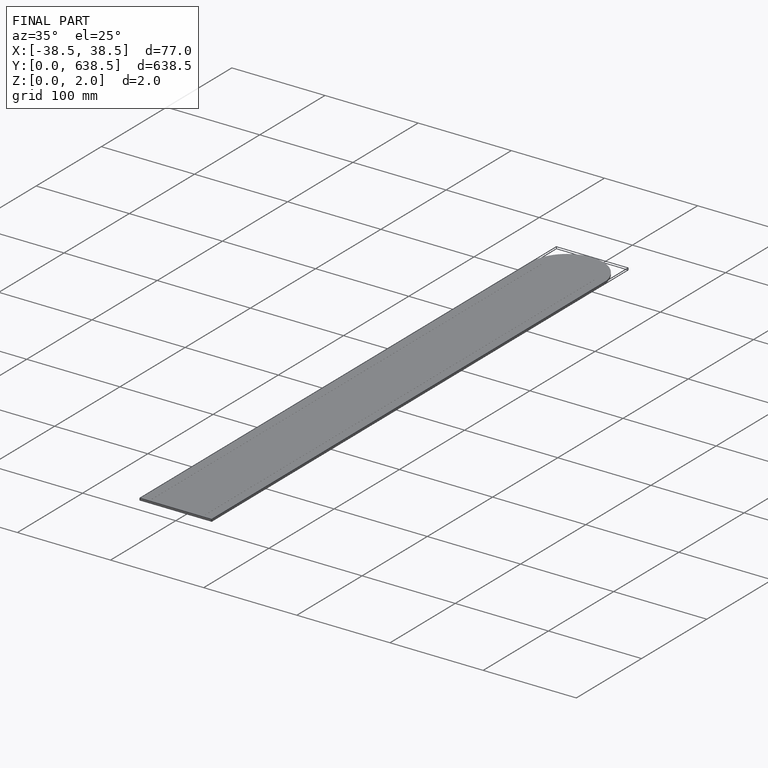
[diagram: finished part — iso view with bounding-box wireframe]
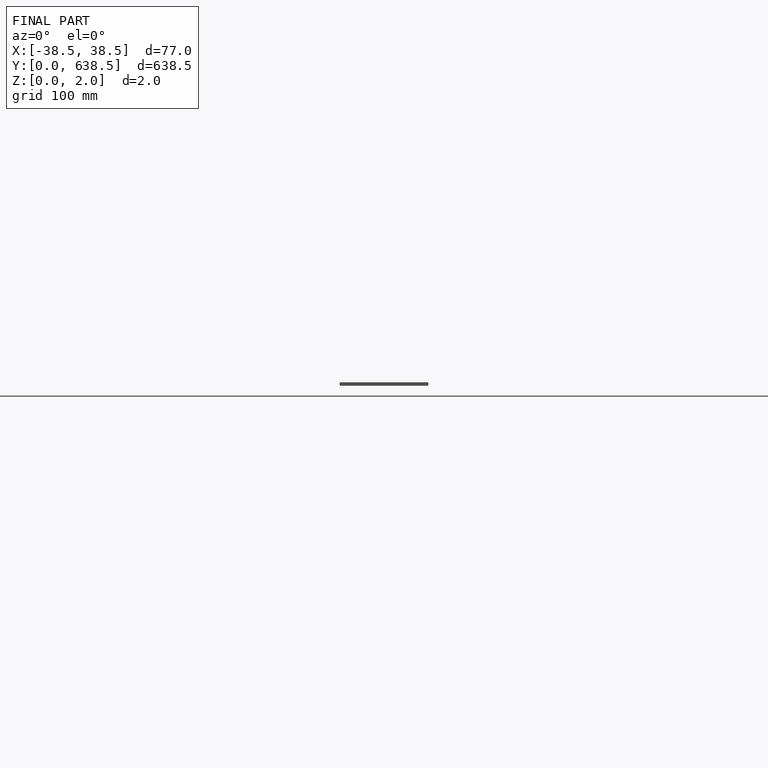
[diagram: finished part — front view with bounding-box wireframe]
